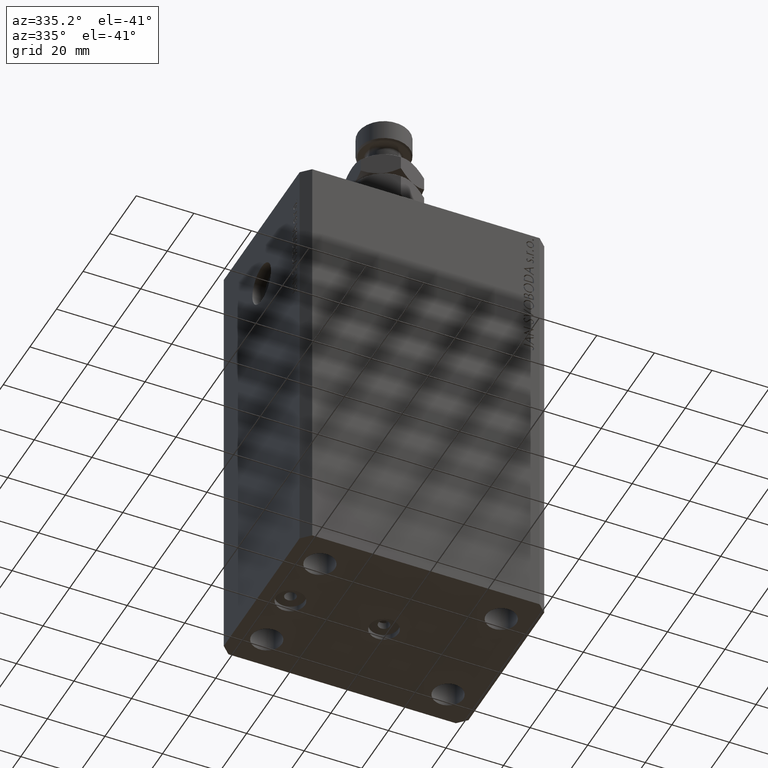
[diagram: clean part render]
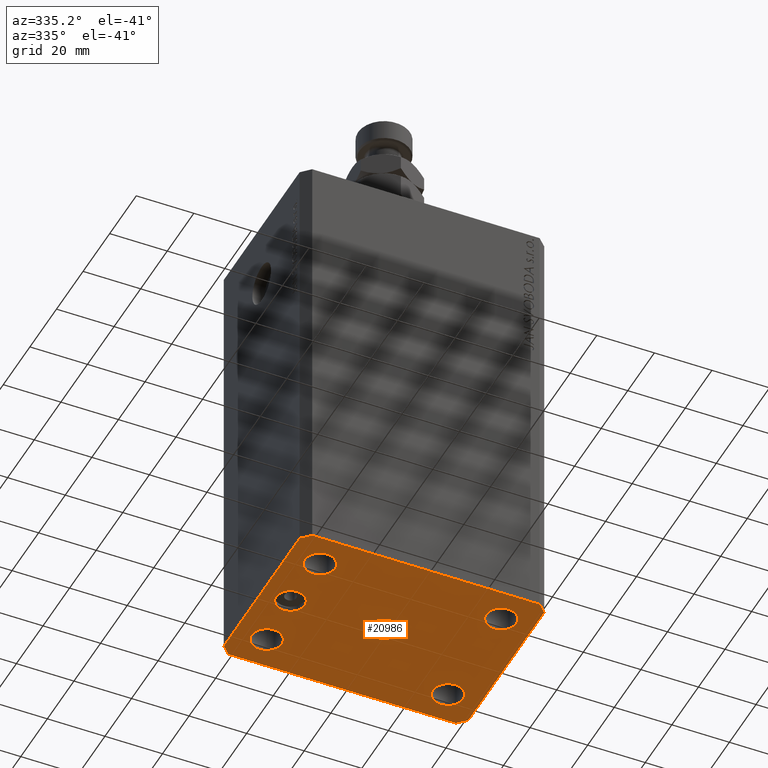
[diagram: same view with one face highlighted and labeled with its STEP entity id]
A machine part, auxiliary view. The second image highlights one B-rep face of the part: STEP entity #20986.
In plain terms, the highlighted planar face has unit normal (0, 0, 1).
Its self-contained STEP definition (entity closure, byte-faithful):
#117 = ORIENTED_EDGE ( 'NONE', *, *, #11408, .F. ) ;
#222 = DIRECTION ( 'NONE',  ( 0.7071067811865471286, -0.7071067811865479058, 0.000000000000000000 ) ) ;
#302 = VERTEX_POINT ( 'NONE', #26560 ) ;
#680 = LINE ( 'NONE', #14692, #44034 ) ;
#854 = LINE ( 'NONE', #12680, #37403 ) ;
#1275 = CARTESIAN_POINT ( 'NONE',  ( -39.50000000000000711, -31.50000000000000000, -153.0000000000000000 ) ) ;
#1478 = CARTESIAN_POINT ( 'NONE',  ( -37.50000000000000000, 0.000000000000000000, -153.0000000000000000 ) ) ;
#1565 = CARTESIAN_POINT ( 'NONE',  ( -42.50000000000000000, -28.50000000000000000, -153.0000000000000000 ) ) ;
#2251 = CARTESIAN_POINT ( 'NONE',  ( 39.50000000000000711, -31.50000000000000000, -153.0000000000000000 ) ) ;
#2271 = AXIS2_PLACEMENT_3D ( 'NONE', #30595, #20745, #5791 ) ;
#2475 = EDGE_CURVE ( 'NONE', #2549, #45057, #19666, .T. ) ;
#2528 = ORIENTED_EDGE ( 'NONE', *, *, #43146, .F. ) ;
#2549 = VERTEX_POINT ( 'NONE', #12186 ) ;
#3078 = FACE_OUTER_BOUND ( 'NONE', #22139, .T. ) ;
#3251 = DIRECTION ( 'NONE',  ( 1.000000000000000000, 0.000000000000000000, 0.000000000000000000 ) ) ;
#3380 = ORIENTED_EDGE ( 'NONE', *, *, #22231, .F. ) ;
#3658 = DIRECTION ( 'NONE',  ( -0.000000000000000000, -0.000000000000000000, -1.000000000000000000 ) ) ;
#4074 = VECTOR ( 'NONE', #12286, 1000.000000000000000 ) ;
#4617 = VERTEX_POINT ( 'NONE', #15006 ) ;
#5200 = EDGE_CURVE ( 'NONE', #25651, #302, #9252, .T. ) ;
#5289 = CARTESIAN_POINT ( 'NONE',  ( 42.50000000000000711, -28.50000000000000355, -153.0000000000000000 ) ) ;
#5391 = EDGE_LOOP ( 'NONE', ( #30321, #31022 ) ) ;
#5791 = DIRECTION ( 'NONE',  ( 1.000000000000000000, 0.000000000000000000, 0.000000000000000000 ) ) ;
#5891 = EDGE_CURVE ( 'NONE', #23388, #42027, #22006, .T. ) ;
#6146 = CARTESIAN_POINT ( 'NONE',  ( 36.75000000000000000, 19.99999999999999289, -153.0000000000000000 ) ) ;
#6357 = DIRECTION ( 'NONE',  ( 0.000000000000000000, 0.000000000000000000, 1.000000000000000000 ) ) ;
#6380 = CIRCLE ( 'NONE', #23542, 4.999999999999997335 ) ;
#6550 = EDGE_CURVE ( 'NONE', #45461, #25651, #45005, .T. ) ;
#6695 = VERTEX_POINT ( 'NONE', #23946 ) ;
#7363 = CIRCLE ( 'NONE', #33513, 5.250000000000000888 ) ;
#8965 = CARTESIAN_POINT ( 'NONE',  ( 42.50000000000051870, 28.49999999999995381, -153.0000000000000000 ) ) ;
#8973 = DIRECTION ( 'NONE',  ( 1.000000000000000000, 0.000000000000000000, 0.000000000000000000 ) ) ;
#9089 = VERTEX_POINT ( 'NONE', #39395 ) ;
#9252 = LINE ( 'NONE', #2251, #4074 ) ;
#10005 = ORIENTED_EDGE ( 'NONE', *, *, #24482, .F. ) ;
#10783 = CARTESIAN_POINT ( 'NONE',  ( -36.75000000000000000, 19.99999999999999645, -153.0000000000000000 ) ) ;
#11186 = CARTESIAN_POINT ( 'NONE',  ( 26.24999999999999645, -20.00000000000000355, -153.0000000000000000 ) ) ;
#11408 = EDGE_CURVE ( 'NONE', #38164, #9089, #6380, .T. ) ;
#12186 = CARTESIAN_POINT ( 'NONE',  ( 26.25000000000000355, 19.99999999999999289, -153.0000000000000000 ) ) ;
#12286 = DIRECTION ( 'NONE',  ( 0.7071067811865483499, 0.7071067811865466846, 0.000000000000000000 ) ) ;
#12680 = CARTESIAN_POINT ( 'NONE',  ( -42.50000000000000000, 28.50000000000000000, -153.0000000000000000 ) ) ;
#12828 = DIRECTION ( 'NONE',  ( 1.000000000000000000, 0.000000000000000000, 0.000000000000000000 ) ) ;
#12908 = DIRECTION ( 'NONE',  ( -1.000000000000000000, 0.000000000000000000, 0.000000000000000000 ) ) ;
#13129 = FACE_BOUND ( 'NONE', #25681, .T. ) ;
#13302 = AXIS2_PLACEMENT_3D ( 'NONE', #36128, #44045, #18101 ) ;
#13412 = VECTOR ( 'NONE', #40659, 1000.000000000000000 ) ;
#14067 = VERTEX_POINT ( 'NONE', #10783 ) ;
#14175 = CARTESIAN_POINT ( 'NONE',  ( 31.49999999999999289, -20.00000000000000355, -153.0000000000000000 ) ) ;
#14692 = CARTESIAN_POINT ( 'NONE',  ( -42.50000000000000000, -28.50000000000000000, -153.0000000000000000 ) ) ;
#15006 = CARTESIAN_POINT ( 'NONE',  ( -42.50000000000000000, 28.50000000000000000, -153.0000000000000000 ) ) ;
#15024 = DIRECTION ( 'NONE',  ( -0.000000000000000000, -0.000000000000000000, -1.000000000000000000 ) ) ;
#15058 = CARTESIAN_POINT ( 'NONE',  ( -32.50000000000000000, 0.000000000000000000, -153.0000000000000000 ) ) ;
#15108 = DIRECTION ( 'NONE',  ( 0.000000000000000000, -1.000000000000000000, 0.000000000000000000 ) ) ;
#15386 = CARTESIAN_POINT ( 'NONE',  ( -39.50000000000000711, 31.50000000000000000, -153.0000000000000000 ) ) ;
#15855 = DIRECTION ( 'NONE',  ( -1.000000000000000000, 0.000000000000000000, 0.000000000000000000 ) ) ;
#17057 = VERTEX_POINT ( 'NONE', #1565 ) ;
#17099 = FACE_BOUND ( 'NONE', #43412, .T. ) ;
#17282 = DIRECTION ( 'NONE',  ( -0.7071067811865356934, 0.7071067811865594521, 0.000000000000000000 ) ) ;
#17927 = VECTOR ( 'NONE', #34063, 1000.000000000000000 ) ;
#18101 = DIRECTION ( 'NONE',  ( 1.000000000000000000, 0.000000000000000000, 0.000000000000000000 ) ) ;
#18961 = CARTESIAN_POINT ( 'NONE',  ( -26.24999999999999289, -20.00000000000000355, -153.0000000000000000 ) ) ;
#19455 = CARTESIAN_POINT ( 'NONE',  ( 39.50000000000000711, -31.50000000000000000, -153.0000000000000000 ) ) ;
#19639 = CARTESIAN_POINT ( 'NONE',  ( -31.50000000000000000, 19.99999999999999645, -153.0000000000000000 ) ) ;
#19666 = CIRCLE ( 'NONE', #45815, 5.249999999999997335 ) ;
#19983 = CARTESIAN_POINT ( 'NONE',  ( -31.49999999999999289, -20.00000000000000355, -153.0000000000000000 ) ) ;
#20093 = AXIS2_PLACEMENT_3D ( 'NONE', #19639, #40927, #45995 ) ;
#20160 = FACE_BOUND ( 'NONE', #5391, .T. ) ;
#20224 = VERTEX_POINT ( 'NONE', #45589 ) ;
#20312 = ORIENTED_EDGE ( 'NONE', *, *, #30621, .F. ) ;
#20326 = ORIENTED_EDGE ( 'NONE', *, *, #23871, .F. ) ;
#20745 = DIRECTION ( 'NONE',  ( -0.000000000000000000, -0.000000000000000000, -1.000000000000000000 ) ) ;
#20846 = CARTESIAN_POINT ( 'NONE',  ( 39.50000000000056843, 31.50000000000000000, -153.0000000000000000 ) ) ;
#20849 = CIRCLE ( 'NONE', #20093, 5.250000000000000888 ) ;
#20986 = ADVANCED_FACE ( 'NONE', ( #24584, #17099, #13129, #28107, #20160, #41689, #3078 ), #34444, .F. ) ;
#21033 = DIRECTION ( 'NONE',  ( -0.000000000000000000, -0.000000000000000000, -1.000000000000000000 ) ) ;
#21232 = EDGE_CURVE ( 'NONE', #42027, #23388, #45478, .T. ) ;
#21481 = CARTESIAN_POINT ( 'NONE',  ( 42.50000000000051870, 28.49999999999995381, -153.0000000000000000 ) ) ;
#22006 = CIRCLE ( 'NONE', #43650, 5.249999999999997335 ) ;
#22106 = CARTESIAN_POINT ( 'NONE',  ( 39.50000000000056843, 31.50000000000000000, -153.0000000000000000 ) ) ;
#22139 = EDGE_LOOP ( 'NONE', ( #24355, #3380, #37877, #44837, #22616, #30609, #24982, #10005 ) ) ;
#22231 = EDGE_CURVE ( 'NONE', #33244, #28316, #38822, .T. ) ;
#22511 = ORIENTED_EDGE ( 'NONE', *, *, #5891, .F. ) ;
#22616 = ORIENTED_EDGE ( 'NONE', *, *, #6550, .F. ) ;
#22994 = CARTESIAN_POINT ( 'NONE',  ( -32.50000000000000000, 0.000000000000000000, -153.0000000000000000 ) ) ;
#23283 = CARTESIAN_POINT ( 'NONE',  ( -39.50000000000000711, -31.50000000000000000, -153.0000000000000000 ) ) ;
#23295 = LINE ( 'NONE', #5289, #17927 ) ;
#23388 = VERTEX_POINT ( 'NONE', #31061 ) ;
#23495 = DIRECTION ( 'NONE',  ( 1.000000000000000000, 0.000000000000000000, 0.000000000000000000 ) ) ;
#23542 = AXIS2_PLACEMENT_3D ( 'NONE', #22994, #40785, #37760 ) ;
#23822 = DIRECTION ( 'NONE',  ( -0.000000000000000000, -0.000000000000000000, -1.000000000000000000 ) ) ;
#23871 = EDGE_CURVE ( 'NONE', #20224, #14067, #29853, .T. ) ;
#23946 = CARTESIAN_POINT ( 'NONE',  ( -36.74999999999999289, -20.00000000000000355, -153.0000000000000000 ) ) ;
#24099 = VERTEX_POINT ( 'NONE', #42627 ) ;
#24302 = CARTESIAN_POINT ( 'NONE',  ( 31.50000000000000000, 19.99999999999999289, -153.0000000000000000 ) ) ;
#24343 = CARTESIAN_POINT ( 'NONE',  ( -39.50000000000000711, 31.50000000000000000, -153.0000000000000000 ) ) ;
#24355 = ORIENTED_EDGE ( 'NONE', *, *, #30188, .F. ) ;
#24358 = LINE ( 'NONE', #20846, #40377 ) ;
#24425 = EDGE_CURVE ( 'NONE', #17057, #45461, #680, .T. ) ;
#24482 = EDGE_CURVE ( 'NONE', #34308, #4617, #33879, .T. ) ;
#24584 = FACE_BOUND ( 'NONE', #36775, .T. ) ;
#24670 = CARTESIAN_POINT ( 'NONE',  ( 5.000000000000000000, 6.123233995736765296E-16, -153.0000000000000000 ) ) ;
#24867 = DIRECTION ( 'NONE',  ( 1.000000000000000000, 0.000000000000000000, 0.000000000000000000 ) ) ;
#24982 = ORIENTED_EDGE ( 'NONE', *, *, #30718, .F. ) ;
#25353 = DIRECTION ( 'NONE',  ( 0.000000000000000000, 0.000000000000000000, -1.000000000000000000 ) ) ;
#25651 = VERTEX_POINT ( 'NONE', #19455 ) ;
#25681 = EDGE_LOOP ( 'NONE', ( #45789, #20312 ) ) ;
#25855 = EDGE_CURVE ( 'NONE', #14067, #20224, #20849, .T. ) ;
#26560 = CARTESIAN_POINT ( 'NONE',  ( 42.50000000000000711, -28.50000000000000355, -153.0000000000000000 ) ) ;
#26625 = ORIENTED_EDGE ( 'NONE', *, *, #21232, .F. ) ;
#26694 = EDGE_CURVE ( 'NONE', #45057, #2549, #27587, .T. ) ;
#27009 = DIRECTION ( 'NONE',  ( -0.000000000000000000, -0.000000000000000000, -1.000000000000000000 ) ) ;
#27186 = ORIENTED_EDGE ( 'NONE', *, *, #25855, .F. ) ;
#27587 = CIRCLE ( 'NONE', #32824, 5.249999999999997335 ) ;
#27647 = AXIS2_PLACEMENT_3D ( 'NONE', #41842, #44638, #15855 ) ;
#28107 = FACE_BOUND ( 'NONE', #44305, .T. ) ;
#28181 = DIRECTION ( 'NONE',  ( -1.000000000000000000, 0.000000000000000000, 0.000000000000000000 ) ) ;
#28316 = VERTEX_POINT ( 'NONE', #22106 ) ;
#29853 = CIRCLE ( 'NONE', #13302, 5.250000000000000888 ) ;
#30188 = EDGE_CURVE ( 'NONE', #28316, #34308, #24358, .T. ) ;
#30254 = DIRECTION ( 'NONE',  ( 0.000000000000000000, 0.000000000000000000, -1.000000000000000000 ) ) ;
#30321 = ORIENTED_EDGE ( 'NONE', *, *, #26694, .F. ) ;
#30595 = CARTESIAN_POINT ( 'NONE',  ( -31.49999999999999289, -20.00000000000000355, -153.0000000000000000 ) ) ;
#30609 = ORIENTED_EDGE ( 'NONE', *, *, #24425, .F. ) ;
#30621 = EDGE_CURVE ( 'NONE', #6695, #45904, #31427, .T. ) ;
#30718 = EDGE_CURVE ( 'NONE', #4617, #17057, #854, .T. ) ;
#31022 = ORIENTED_EDGE ( 'NONE', *, *, #2475, .F. ) ;
#31061 = CARTESIAN_POINT ( 'NONE',  ( 36.74999999999999289, -20.00000000000000355, -153.0000000000000000 ) ) ;
#31242 = ORIENTED_EDGE ( 'NONE', *, *, #42395, .F. ) ;
#31427 = CIRCLE ( 'NONE', #2271, 5.250000000000000888 ) ;
#31516 = DIRECTION ( 'NONE',  ( 1.000000000000000000, 0.000000000000000000, 0.000000000000000000 ) ) ;
#31859 = VERTEX_POINT ( 'NONE', #24670 ) ;
#32135 = CARTESIAN_POINT ( 'NONE',  ( 31.50000000000000000, 19.99999999999999289, -153.0000000000000000 ) ) ;
#32758 = AXIS2_PLACEMENT_3D ( 'NONE', #38879, #6357, #45873 ) ;
#32824 = AXIS2_PLACEMENT_3D ( 'NONE', #24302, #21033, #3251 ) ;
#33244 = VERTEX_POINT ( 'NONE', #8965 ) ;
#33513 = AXIS2_PLACEMENT_3D ( 'NONE', #19983, #27009, #23495 ) ;
#33879 = LINE ( 'NONE', #15386, #13412 ) ;
#34063 = DIRECTION ( 'NONE',  ( 8.886653596232072440E-15, 1.000000000000000000, 0.000000000000000000 ) ) ;
#34308 = VERTEX_POINT ( 'NONE', #24343 ) ;
#34444 = PLANE ( 'NONE',  #32758 ) ;
#34595 = EDGE_LOOP ( 'NONE', ( #20326, #27186 ) ) ;
#34596 = CARTESIAN_POINT ( 'NONE',  ( 31.49999999999999289, -20.00000000000000355, -153.0000000000000000 ) ) ;
#36128 = CARTESIAN_POINT ( 'NONE',  ( -31.50000000000000000, 19.99999999999999645, -153.0000000000000000 ) ) ;
#36208 = ORIENTED_EDGE ( 'NONE', *, *, #37978, .F. ) ;
#36775 = EDGE_LOOP ( 'NONE', ( #36208, #2528 ) ) ;
#36991 = EDGE_CURVE ( 'NONE', #45904, #6695, #7363, .T. ) ;
#37269 = AXIS2_PLACEMENT_3D ( 'NONE', #14175, #3658, #31516 ) ;
#37403 = VECTOR ( 'NONE', #15108, 1000.000000000000000 ) ;
#37719 = VECTOR ( 'NONE', #8973, 1000.000000000000000 ) ;
#37760 = DIRECTION ( 'NONE',  ( -1.000000000000000000, 0.000000000000000000, 0.000000000000000000 ) ) ;
#37877 = ORIENTED_EDGE ( 'NONE', *, *, #43424, .F. ) ;
#37978 = EDGE_CURVE ( 'NONE', #24099, #31859, #39535, .T. ) ;
#38084 = AXIS2_PLACEMENT_3D ( 'NONE', #15058, #30254, #43600 ) ;
#38164 = VERTEX_POINT ( 'NONE', #1478 ) ;
#38786 = VECTOR ( 'NONE', #17282, 1000.000000000000114 ) ;
#38822 = LINE ( 'NONE', #21481, #38786 ) ;
#38879 = CARTESIAN_POINT ( 'NONE',  ( 0.000000000000000000, 0.000000000000000000, -153.0000000000000000 ) ) ;
#39395 = CARTESIAN_POINT ( 'NONE',  ( -27.50000000000000355, 6.123233995736762338E-16, -153.0000000000000000 ) ) ;
#39535 = CIRCLE ( 'NONE', #45506, 5.000000000000000000 ) ;
#40377 = VECTOR ( 'NONE', #12908, 1000.000000000000000 ) ;
#40659 = DIRECTION ( 'NONE',  ( -0.7071067811865471286, -0.7071067811865479058, 0.000000000000000000 ) ) ;
#40785 = DIRECTION ( 'NONE',  ( 0.000000000000000000, 0.000000000000000000, -1.000000000000000000 ) ) ;
#40927 = DIRECTION ( 'NONE',  ( -0.000000000000000000, -0.000000000000000000, -1.000000000000000000 ) ) ;
#41689 = FACE_BOUND ( 'NONE', #34595, .T. ) ;
#41842 = CARTESIAN_POINT ( 'NONE',  ( 0.000000000000000000, 0.000000000000000000, -153.0000000000000000 ) ) ;
#42027 = VERTEX_POINT ( 'NONE', #11186 ) ;
#42395 = EDGE_CURVE ( 'NONE', #9089, #38164, #44026, .T. ) ;
#42451 = CARTESIAN_POINT ( 'NONE',  ( 0.000000000000000000, 0.000000000000000000, -153.0000000000000000 ) ) ;
#42627 = CARTESIAN_POINT ( 'NONE',  ( -5.000000000000000000, 0.000000000000000000, -153.0000000000000000 ) ) ;
#43146 = EDGE_CURVE ( 'NONE', #31859, #24099, #44838, .T. ) ;
#43412 = EDGE_LOOP ( 'NONE', ( #117, #31242 ) ) ;
#43424 = EDGE_CURVE ( 'NONE', #302, #33244, #23295, .T. ) ;
#43600 = DIRECTION ( 'NONE',  ( -1.000000000000000000, 0.000000000000000000, 0.000000000000000000 ) ) ;
#43650 = AXIS2_PLACEMENT_3D ( 'NONE', #34596, #23822, #12828 ) ;
#44026 = CIRCLE ( 'NONE', #38084, 4.999999999999997335 ) ;
#44034 = VECTOR ( 'NONE', #222, 1000.000000000000000 ) ;
#44045 = DIRECTION ( 'NONE',  ( -0.000000000000000000, -0.000000000000000000, -1.000000000000000000 ) ) ;
#44305 = EDGE_LOOP ( 'NONE', ( #22511, #26625 ) ) ;
#44638 = DIRECTION ( 'NONE',  ( 0.000000000000000000, 0.000000000000000000, -1.000000000000000000 ) ) ;
#44837 = ORIENTED_EDGE ( 'NONE', *, *, #5200, .F. ) ;
#44838 = CIRCLE ( 'NONE', #27647, 5.000000000000000000 ) ;
#45005 = LINE ( 'NONE', #1275, #37719 ) ;
#45057 = VERTEX_POINT ( 'NONE', #6146 ) ;
#45461 = VERTEX_POINT ( 'NONE', #23283 ) ;
#45478 = CIRCLE ( 'NONE', #37269, 5.249999999999997335 ) ;
#45506 = AXIS2_PLACEMENT_3D ( 'NONE', #42451, #25353, #28181 ) ;
#45589 = CARTESIAN_POINT ( 'NONE',  ( -26.25000000000000000, 19.99999999999999645, -153.0000000000000000 ) ) ;
#45789 = ORIENTED_EDGE ( 'NONE', *, *, #36991, .F. ) ;
#45815 = AXIS2_PLACEMENT_3D ( 'NONE', #32135, #15024, #24867 ) ;
#45873 = DIRECTION ( 'NONE',  ( 1.000000000000000000, 0.000000000000000000, -0.000000000000000000 ) ) ;
#45904 = VERTEX_POINT ( 'NONE', #18961 ) ;
#45995 = DIRECTION ( 'NONE',  ( 1.000000000000000000, 0.000000000000000000, 0.000000000000000000 ) ) ;